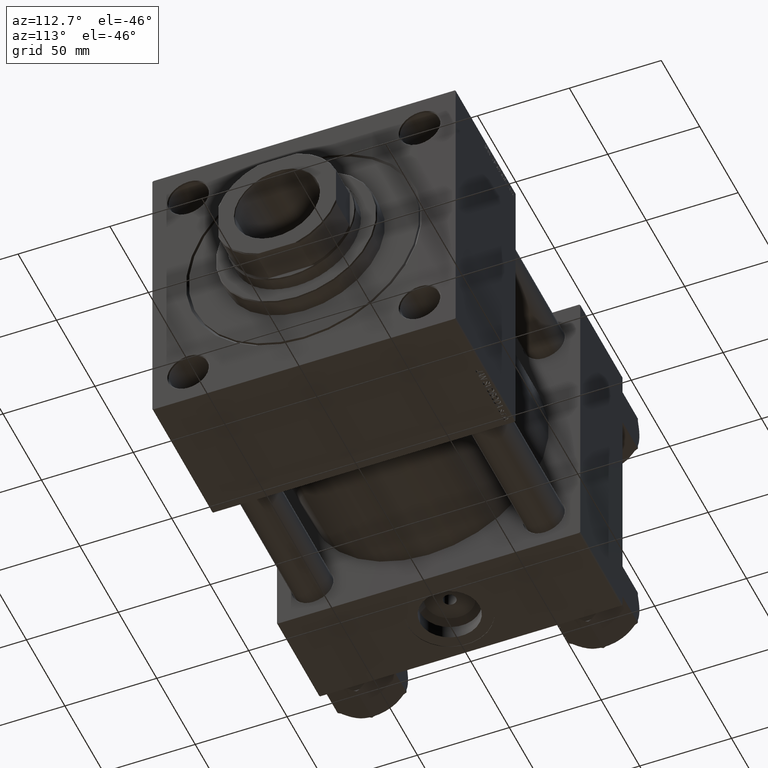
[diagram: clean part render]
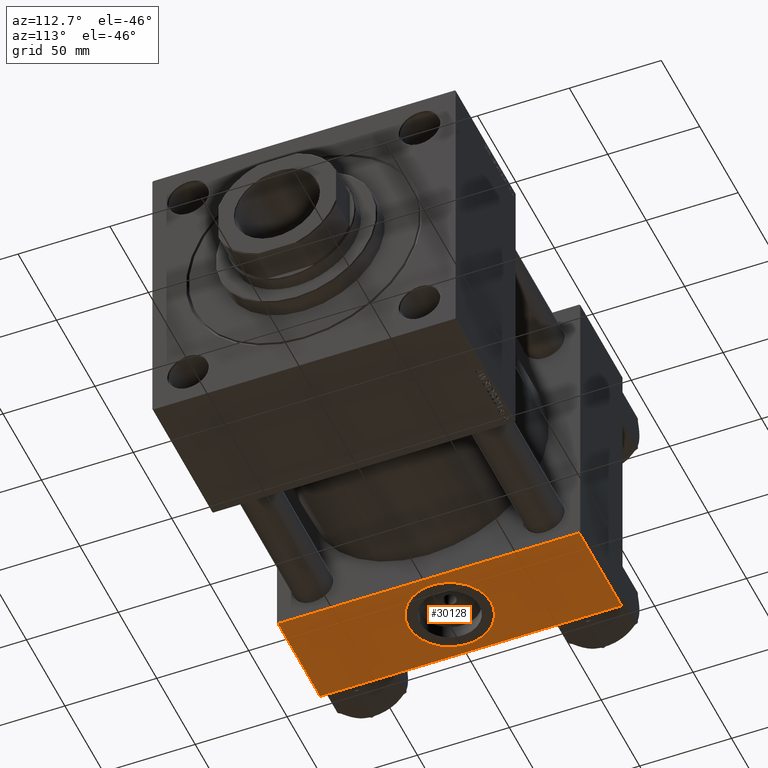
[diagram: same view with one face highlighted and labeled with its STEP entity id]
A machine part, auxiliary view. The second image highlights one B-rep face of the part: STEP entity #30128.
In plain terms, the highlighted planar face has unit normal (0, 0, -1).
Its self-contained STEP definition (entity closure, byte-faithful):
#1059 = DIRECTION ( 'NONE',  ( 0.000000000000000000, 1.000000000000000000, 0.000000000000000000 ) ) ;
#1688 = CARTESIAN_POINT ( 'NONE',  ( 27.50000000000001066, 1.093863548986080689E-14, -82.49999999999998579 ) ) ;
#1907 = DIRECTION ( 'NONE',  ( 1.000000000000000000, 0.000000000000000000, 0.000000000000000000 ) ) ;
#2134 = EDGE_CURVE ( 'NONE', #22133, #4355, #30900, .T. ) ;
#2135 = CARTESIAN_POINT ( 'NONE',  ( 55.00000000000000000, 82.50000000000002842, -82.49999999999997158 ) ) ;
#2746 = EDGE_LOOP ( 'NONE', ( #32897, #47335 ) ) ;
#4355 = VERTEX_POINT ( 'NONE', #7176 ) ;
#4401 = ORIENTED_EDGE ( 'NONE', *, *, #22528, .T. ) ;
#5328 = EDGE_CURVE ( 'NONE', #4355, #10277, #30866, .T. ) ;
#6768 = VERTEX_POINT ( 'NONE', #32116 ) ;
#7176 = CARTESIAN_POINT ( 'NONE',  ( 55.00000000000000000, 82.00000000000005684, -82.49999999999997158 ) ) ;
#7317 = VECTOR ( 'NONE', #24668, 1000.000000000000000 ) ;
#7613 = DIRECTION ( 'NONE',  ( 0.000000000000000000, -1.000000000000000000, -1.682156097916903588E-16 ) ) ;
#8808 = VERTEX_POINT ( 'NONE', #30604 ) ;
#8853 = DIRECTION ( 'NONE',  ( 0.000000000000000000, 1.682156097916903588E-16, -1.000000000000000000 ) ) ;
#9828 = DIRECTION ( 'NONE',  ( 0.000000000000000000, -1.734723475976806848E-16, -1.000000000000000000 ) ) ;
#10162 = CARTESIAN_POINT ( 'NONE',  ( 55.00000000000000000, 82.00000000000005684, -82.49999999999997158 ) ) ;
#10277 = VERTEX_POINT ( 'NONE', #42187 ) ;
#10777 = AXIS2_PLACEMENT_3D ( 'NONE', #1688, #46890, #17939 ) ;
#10923 = EDGE_CURVE ( 'NONE', #22133, #8808, #20128, .T. ) ;
#11427 = CARTESIAN_POINT ( 'NONE',  ( 27.50000000000001066, 22.50000000000001421, -82.49999999999998579 ) ) ;
#12868 = VECTOR ( 'NONE', #7613, 1000.000000000000000 ) ;
#16816 = EDGE_CURVE ( 'NONE', #18800, #6768, #39404, .T. ) ;
#17939 = DIRECTION ( 'NONE',  ( 0.000000000000000000, 1.000000000000000000, 0.000000000000000000 ) ) ;
#18386 = DIRECTION ( 'NONE',  ( 0.000000000000000000, -1.000000000000000000, -1.682156097916903588E-16 ) ) ;
#18800 = VERTEX_POINT ( 'NONE', #11427 ) ;
#20128 = LINE ( 'NONE', #32603, #12868 ) ;
#20841 = FACE_OUTER_BOUND ( 'NONE', #31312, .T. ) ;
#22133 = VERTEX_POINT ( 'NONE', #29890 ) ;
#22528 = EDGE_CURVE ( 'NONE', #10277, #8808, #31854, .T. ) ;
#23223 = EDGE_CURVE ( 'NONE', #6768, #18800, #44747, .T. ) ;
#24038 = CARTESIAN_POINT ( 'NONE',  ( 55.00000000000000000, 82.50000000000002842, -82.49999999999997158 ) ) ;
#24668 = DIRECTION ( 'NONE',  ( -1.000000000000000000, 0.000000000000000000, 0.000000000000000000 ) ) ;
#25810 = AXIS2_PLACEMENT_3D ( 'NONE', #41234, #9828, #1059 ) ;
#27226 = VECTOR ( 'NONE', #18386, 1000.000000000000000 ) ;
#29890 = CARTESIAN_POINT ( 'NONE',  ( 0.000000000000000000, 82.00000000000005684, -82.49999999999997158 ) ) ;
#30128 = ADVANCED_FACE ( 'NONE', ( #36794, #20841 ), #37059, .T. ) ;
#30604 = CARTESIAN_POINT ( 'NONE',  ( 0.000000000000000000, -82.00000000000000000, -82.50000000000000000 ) ) ;
#30866 = LINE ( 'NONE', #2135, #27226 ) ;
#30900 = LINE ( 'NONE', #10162, #42360 ) ;
#31312 = EDGE_LOOP ( 'NONE', ( #37323, #47278, #40088, #4401 ) ) ;
#31854 = LINE ( 'NONE', #48324, #7317 ) ;
#32116 = CARTESIAN_POINT ( 'NONE',  ( 27.50000000000001421, -22.49999999999999289, -82.49999999999998579 ) ) ;
#32603 = CARTESIAN_POINT ( 'NONE',  ( 0.000000000000000000, 82.50000000000002842, -82.49999999999997158 ) ) ;
#32897 = ORIENTED_EDGE ( 'NONE', *, *, #16816, .F. ) ;
#36794 = FACE_BOUND ( 'NONE', #2746, .T. ) ;
#37059 = PLANE ( 'NONE',  #48232 ) ;
#37323 = ORIENTED_EDGE ( 'NONE', *, *, #10923, .F. ) ;
#39404 = CIRCLE ( 'NONE', #25810, 22.50000000000000355 ) ;
#40088 = ORIENTED_EDGE ( 'NONE', *, *, #5328, .T. ) ;
#41234 = CARTESIAN_POINT ( 'NONE',  ( 27.50000000000001066, 1.093863548986080689E-14, -82.49999999999998579 ) ) ;
#41303 = DIRECTION ( 'NONE',  ( 0.000000000000000000, 1.000000000000000000, 1.682156097916903588E-16 ) ) ;
#42187 = CARTESIAN_POINT ( 'NONE',  ( 55.00000000000000000, -82.00000000000000000, -82.50000000000000000 ) ) ;
#42360 = VECTOR ( 'NONE', #1907, 1000.000000000000000 ) ;
#44747 = CIRCLE ( 'NONE', #10777, 22.50000000000000355 ) ;
#46890 = DIRECTION ( 'NONE',  ( 0.000000000000000000, -1.734723475976806848E-16, -1.000000000000000000 ) ) ;
#47278 = ORIENTED_EDGE ( 'NONE', *, *, #2134, .T. ) ;
#47335 = ORIENTED_EDGE ( 'NONE', *, *, #23223, .F. ) ;
#48232 = AXIS2_PLACEMENT_3D ( 'NONE', #24038, #8853, #41303 ) ;
#48324 = CARTESIAN_POINT ( 'NONE',  ( 0.000000000000000000, -82.00000000000000000, -82.50000000000000000 ) ) ;